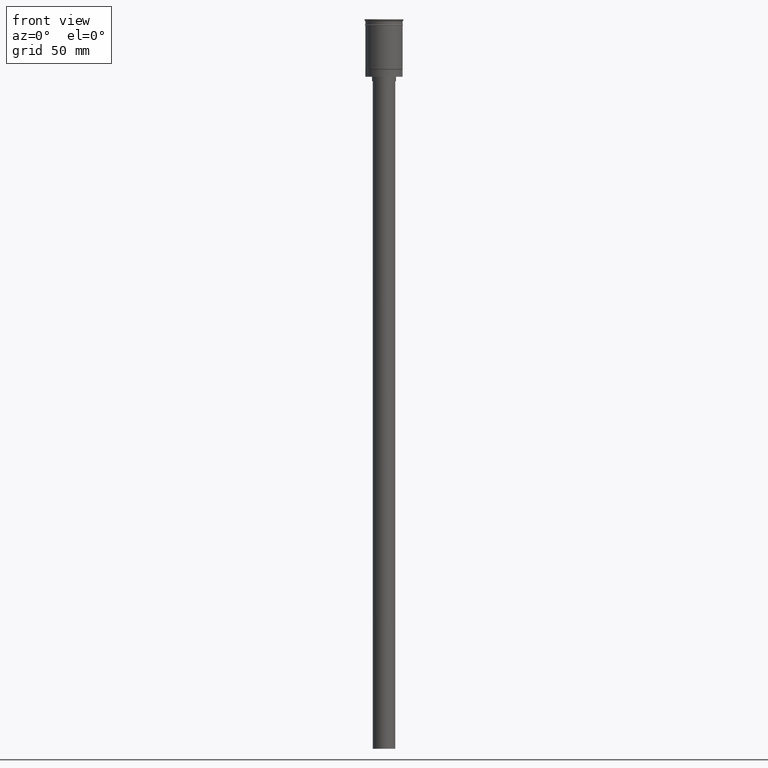
[diagram: clean part render]
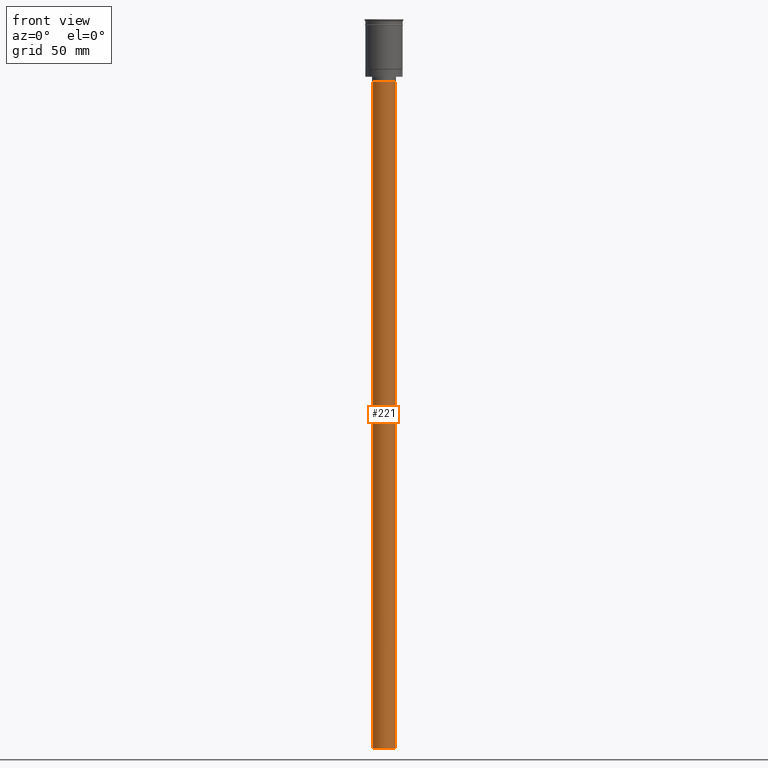
[diagram: same view with one face highlighted and labeled with its STEP entity id]
A machine part, front view. The second image highlights one B-rep face of the part: STEP entity #221.
In plain terms, the highlighted cylindrical surface (edge-blend (fillet) strip) has radius 7.5 mm, axis along (-0, -0, 1).
Its self-contained STEP definition (entity closure, byte-faithful):
#61 = ORIENTED_EDGE ( 'NONE', *, *, #1243, .T. ) ;
#105 = VERTEX_POINT ( 'NONE', #734 ) ;
#148 = CARTESIAN_POINT ( 'NONE',  ( 7.500000000000000000, 0.000000000000000000, -41.50000000000000000 ) ) ;
#218 = EDGE_CURVE ( 'NONE', #105, #1086, #1481, .T. ) ;
#221 = ADVANCED_FACE ( 'NONE', ( #1605 ), #243, .T. ) ;
#243 = CYLINDRICAL_SURFACE ( 'NONE', #774, 7.500000000000000000 ) ;
#295 = EDGE_CURVE ( 'NONE', #346, #1086, #1174, .T. ) ;
#305 = AXIS2_PLACEMENT_3D ( 'NONE', #915, #793, #665 ) ;
#315 = ORIENTED_EDGE ( 'NONE', *, *, #218, .F. ) ;
#346 = VERTEX_POINT ( 'NONE', #148 ) ;
#360 = VECTOR ( 'NONE', #935, 1000.000000000000000 ) ;
#494 = CARTESIAN_POINT ( 'NONE',  ( 0.000000000000000000, 0.000000000000000000, -488.5000000000000000 ) ) ;
#533 = EDGE_CURVE ( 'NONE', #1051, #105, #968, .T. ) ;
#605 = CARTESIAN_POINT ( 'NONE',  ( -7.500000000000000000, 9.184850993605147944E-16, -488.5000000000000000 ) ) ;
#665 = DIRECTION ( 'NONE',  ( -1.000000000000000000, 0.000000000000000000, 0.000000000000000000 ) ) ;
#734 = CARTESIAN_POINT ( 'NONE',  ( -7.500000000000000000, 9.184850993605147944E-16, -488.5000000000000000 ) ) ;
#764 = CARTESIAN_POINT ( 'NONE',  ( 7.500000000000000000, 0.000000000000000000, -488.5000000000000000 ) ) ;
#774 = AXIS2_PLACEMENT_3D ( 'NONE', #494, #1494, #885 ) ;
#793 = DIRECTION ( 'NONE',  ( 0.000000000000000000, 0.000000000000000000, -1.000000000000000000 ) ) ;
#871 = DIRECTION ( 'NONE',  ( 0.000000000000000000, 0.000000000000000000, -1.000000000000000000 ) ) ;
#885 = DIRECTION ( 'NONE',  ( 1.000000000000000000, 0.000000000000000000, 0.000000000000000000 ) ) ;
#912 = AXIS2_PLACEMENT_3D ( 'NONE', #1486, #871, #1368 ) ;
#915 = CARTESIAN_POINT ( 'NONE',  ( 0.000000000000000000, 0.000000000000000000, -41.50000000000000000 ) ) ;
#935 = DIRECTION ( 'NONE',  ( -0.000000000000000000, -0.000000000000000000, 1.000000000000000000 ) ) ;
#968 = CIRCLE ( 'NONE', #912, 7.500000000000000000 ) ;
#992 = DIRECTION ( 'NONE',  ( -0.000000000000000000, -0.000000000000000000, 1.000000000000000000 ) ) ;
#997 = LINE ( 'NONE', #764, #360 ) ;
#1051 = VERTEX_POINT ( 'NONE', #1530 ) ;
#1086 = VERTEX_POINT ( 'NONE', #1329 ) ;
#1174 = CIRCLE ( 'NONE', #305, 7.500000000000000000 ) ;
#1218 = EDGE_LOOP ( 'NONE', ( #315, #1296, #61, #1565 ) ) ;
#1243 = EDGE_CURVE ( 'NONE', #1051, #346, #997, .T. ) ;
#1296 = ORIENTED_EDGE ( 'NONE', *, *, #533, .F. ) ;
#1329 = CARTESIAN_POINT ( 'NONE',  ( -7.500000000000000000, 9.184850993605147944E-16, -41.50000000000000000 ) ) ;
#1368 = DIRECTION ( 'NONE',  ( -1.000000000000000000, 0.000000000000000000, 0.000000000000000000 ) ) ;
#1481 = LINE ( 'NONE', #605, #1533 ) ;
#1486 = CARTESIAN_POINT ( 'NONE',  ( 0.000000000000000000, 0.000000000000000000, -488.5000000000000000 ) ) ;
#1494 = DIRECTION ( 'NONE',  ( -0.000000000000000000, -0.000000000000000000, 1.000000000000000000 ) ) ;
#1530 = CARTESIAN_POINT ( 'NONE',  ( 7.500000000000000000, 0.000000000000000000, -488.5000000000000000 ) ) ;
#1533 = VECTOR ( 'NONE', #992, 1000.000000000000000 ) ;
#1565 = ORIENTED_EDGE ( 'NONE', *, *, #295, .T. ) ;
#1605 = FACE_OUTER_BOUND ( 'NONE', #1218, .T. ) ;